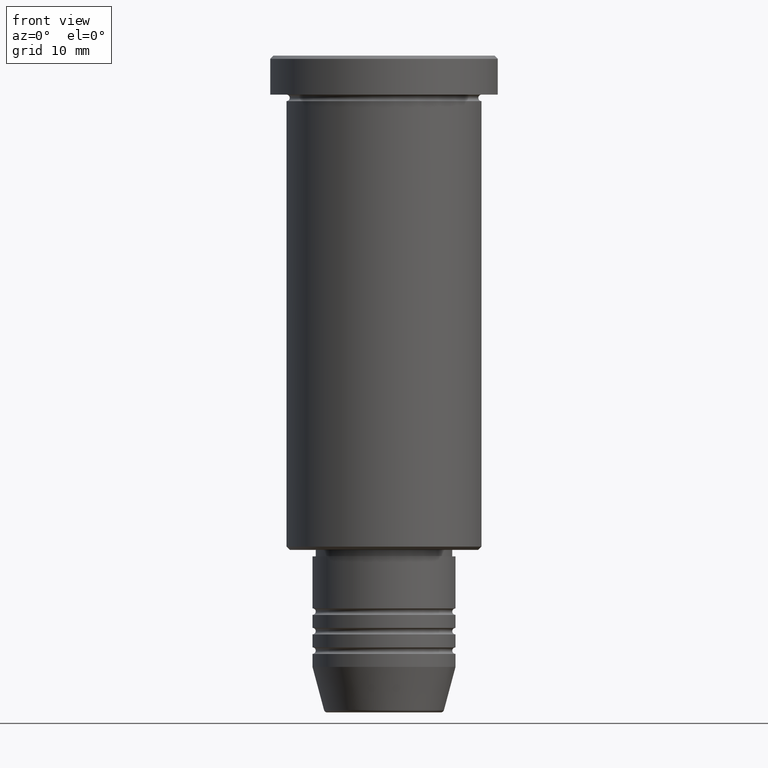
[diagram: clean part render]
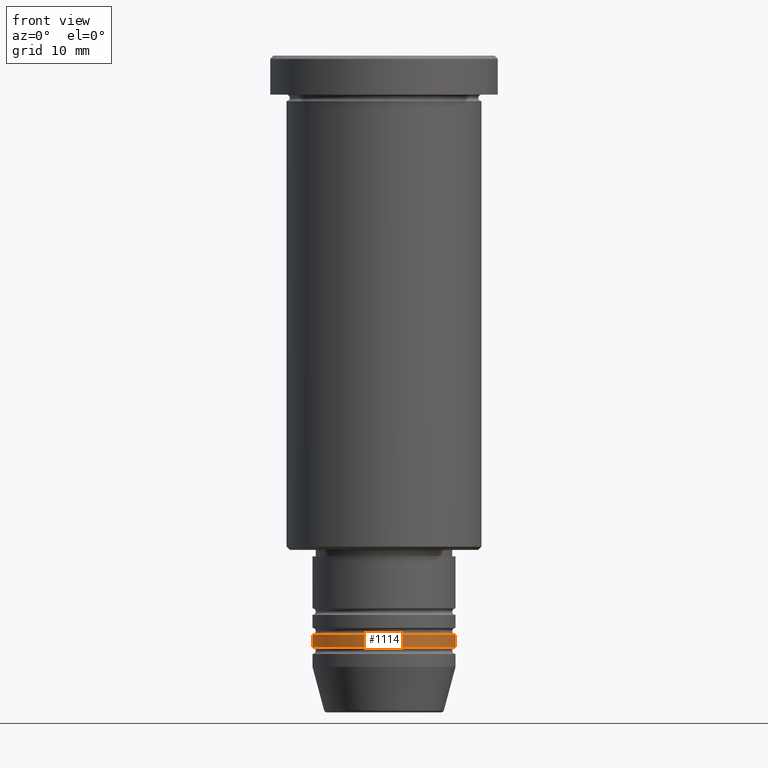
[diagram: same view with one face highlighted and labeled with its STEP entity id]
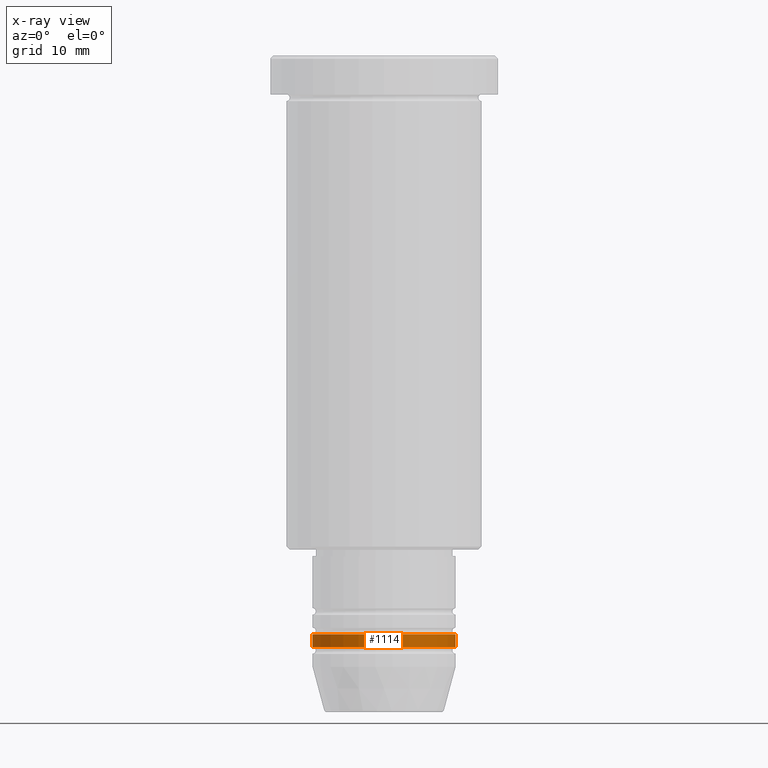
[diagram: x-ray of the same camera — body ghosted, the highlighted face saturated]
A machine part, front view. The second image highlights one B-rep face of the part: STEP entity #1114.
The next image is the same camera in x-ray: the body ghosted, the highlighted face saturated — about 0% of this face is hidden behind the body in this view.
In plain terms, the highlighted cylindrical surface (partial cylindrical patch) has radius 11 mm, axis along (-0, -0, 1).
Its self-contained STEP definition (entity closure, byte-faithful):
#29 = VECTOR ( 'NONE', #437, 1000.000000000000000 ) ;
#60 = VERTEX_POINT ( 'NONE', #292 ) ;
#61 = CIRCLE ( 'NONE', #1078, 11.00000000000000000 ) ;
#66 = ORIENTED_EDGE ( 'NONE', *, *, #283, .F. ) ;
#69 = EDGE_CURVE ( 'NONE', #573, #60, #636, .T. ) ;
#237 = CARTESIAN_POINT ( 'NONE',  ( -11.00000000000000000, 1.347111479062088405E-15, -90.99999999999998579 ) ) ;
#256 = VERTEX_POINT ( 'NONE', #753 ) ;
#283 = EDGE_CURVE ( 'NONE', #256, #60, #958, .T. ) ;
#292 = CARTESIAN_POINT ( 'NONE',  ( 11.00000000000000000, 0.000000000000000000, -88.99999999999998579 ) ) ;
#296 = VERTEX_POINT ( 'NONE', #237 ) ;
#308 = EDGE_CURVE ( 'NONE', #296, #256, #509, .T. ) ;
#373 = ORIENTED_EDGE ( 'NONE', *, *, #308, .F. ) ;
#391 = EDGE_CURVE ( 'NONE', #296, #573, #61, .T. ) ;
#437 = DIRECTION ( 'NONE',  ( -0.000000000000000000, -0.000000000000000000, 1.000000000000000000 ) ) ;
#466 = AXIS2_PLACEMENT_3D ( 'NONE', #623, #711, #799 ) ;
#504 = DIRECTION ( 'NONE',  ( -0.000000000000000000, -0.000000000000000000, 1.000000000000000000 ) ) ;
#509 = LINE ( 'NONE', #598, #29 ) ;
#556 = DIRECTION ( 'NONE',  ( -0.000000000000000000, -0.000000000000000000, 1.000000000000000000 ) ) ;
#573 = VERTEX_POINT ( 'NONE', #1019 ) ;
#598 = CARTESIAN_POINT ( 'NONE',  ( -11.00000000000000000, 1.347111479062088405E-15, 0.000000000000000000 ) ) ;
#623 = CARTESIAN_POINT ( 'NONE',  ( 0.000000000000000000, 0.000000000000000000, 0.000000000000000000 ) ) ;
#636 = LINE ( 'NONE', #906, #1018 ) ;
#700 = DIRECTION ( 'NONE',  ( -0.000000000000000000, -0.000000000000000000, 1.000000000000000000 ) ) ;
#710 = DIRECTION ( 'NONE',  ( 1.000000000000000000, 0.000000000000000000, 0.000000000000000000 ) ) ;
#711 = DIRECTION ( 'NONE',  ( -0.000000000000000000, -0.000000000000000000, 1.000000000000000000 ) ) ;
#725 = ORIENTED_EDGE ( 'NONE', *, *, #69, .T. ) ;
#747 = CARTESIAN_POINT ( 'NONE',  ( 0.000000000000000000, 0.000000000000000000, -88.99999999999998579 ) ) ;
#753 = CARTESIAN_POINT ( 'NONE',  ( -11.00000000000000000, 1.347111479062088405E-15, -88.99999999999998579 ) ) ;
#799 = DIRECTION ( 'NONE',  ( 1.000000000000000000, 0.000000000000000000, 0.000000000000000000 ) ) ;
#839 = ORIENTED_EDGE ( 'NONE', *, *, #391, .T. ) ;
#884 = FACE_OUTER_BOUND ( 'NONE', #1159, .T. ) ;
#906 = CARTESIAN_POINT ( 'NONE',  ( 11.00000000000000000, 0.000000000000000000, 0.000000000000000000 ) ) ;
#958 = CIRCLE ( 'NONE', #1138, 11.00000000000000000 ) ;
#959 = DIRECTION ( 'NONE',  ( 1.000000000000000000, 0.000000000000000000, 0.000000000000000000 ) ) ;
#970 = CARTESIAN_POINT ( 'NONE',  ( 0.000000000000000000, 0.000000000000000000, -90.99999999999998579 ) ) ;
#1018 = VECTOR ( 'NONE', #556, 1000.000000000000000 ) ;
#1019 = CARTESIAN_POINT ( 'NONE',  ( 11.00000000000000000, 0.000000000000000000, -90.99999999999998579 ) ) ;
#1070 = CYLINDRICAL_SURFACE ( 'NONE', #466, 11.00000000000000000 ) ;
#1078 = AXIS2_PLACEMENT_3D ( 'NONE', #970, #504, #959 ) ;
#1114 = ADVANCED_FACE ( 'NONE', ( #884 ), #1070, .T. ) ;
#1138 = AXIS2_PLACEMENT_3D ( 'NONE', #747, #700, #710 ) ;
#1159 = EDGE_LOOP ( 'NONE', ( #373, #839, #725, #66 ) ) ;